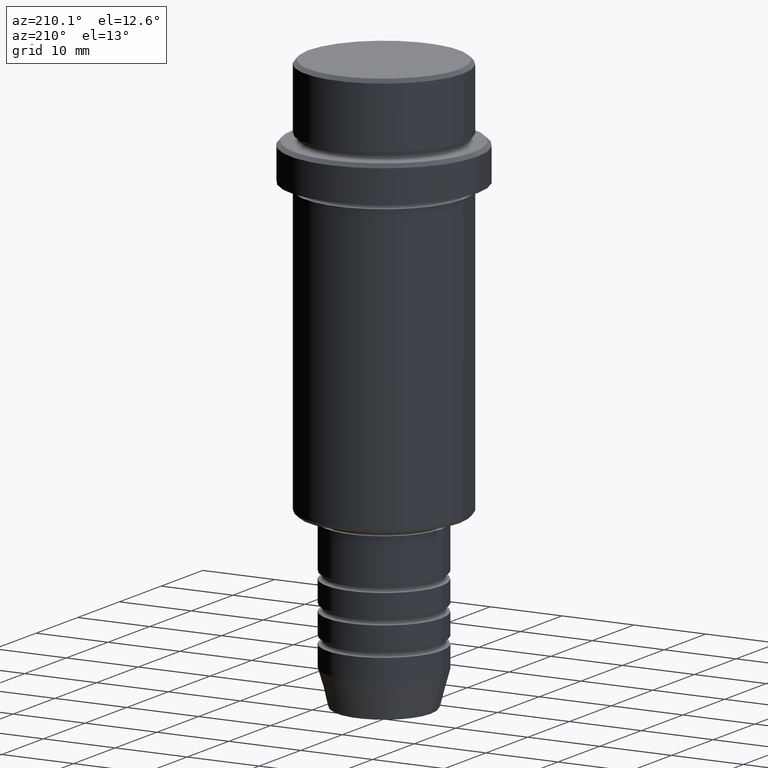
[diagram: clean part render]
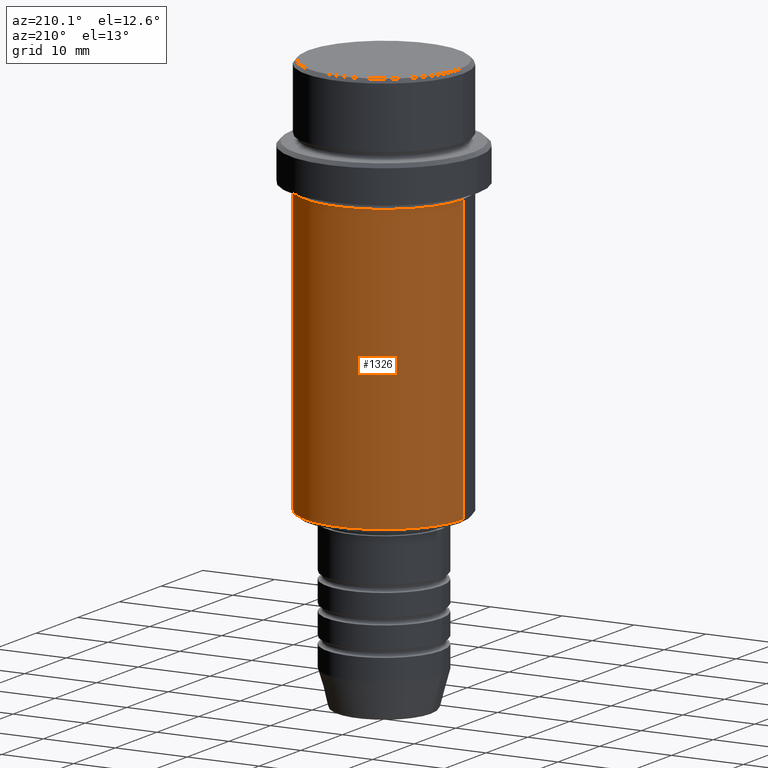
[diagram: same view with one face highlighted and labeled with its STEP entity id]
A machine part, auxiliary view. The second image highlights one B-rep face of the part: STEP entity #1326.
In plain terms, the highlighted cylindrical surface (partial cylindrical patch) has radius 11 mm, axis along (-0, -0, 1).
Its self-contained STEP definition (entity closure, byte-faithful):
#2 = AXIS2_PLACEMENT_3D ( 'NONE', #1288, #1283, #1379 ) ;
#20 = CARTESIAN_POINT ( 'NONE',  ( 10.99999999999998757, 0.000000000000000000, 0.000000000000000000 ) ) ;
#34 = EDGE_CURVE ( 'NONE', #200, #52, #514, .T. ) ;
#52 = VERTEX_POINT ( 'NONE', #309 ) ;
#78 = VERTEX_POINT ( 'NONE', #172 ) ;
#93 = ORIENTED_EDGE ( 'NONE', *, *, #291, .T. ) ;
#98 = CARTESIAN_POINT ( 'NONE',  ( -10.99999999999998757, 1.347111479062086827E-15, -55.50000000000000711 ) ) ;
#150 = EDGE_CURVE ( 'NONE', #78, #200, #1017, .T. ) ;
#169 = LINE ( 'NONE', #485, #653 ) ;
#172 = CARTESIAN_POINT ( 'NONE',  ( 10.99999999999998757, 0.000000000000000000, -55.50000000000000711 ) ) ;
#200 = VERTEX_POINT ( 'NONE', #869 ) ;
#217 = EDGE_LOOP ( 'NONE', ( #93, #434, #718, #1364 ) ) ;
#291 = EDGE_CURVE ( 'NONE', #78, #540, #1276, .T. ) ;
#309 = CARTESIAN_POINT ( 'NONE',  ( -10.99999999999997158, 1.347111479062085841E-15, -16.00000000000000355 ) ) ;
#311 = CARTESIAN_POINT ( 'NONE',  ( 0.000000000000000000, 0.000000000000000000, 0.000000000000000000 ) ) ;
#312 = EDGE_CURVE ( 'NONE', #540, #52, #169, .T. ) ;
#403 = AXIS2_PLACEMENT_3D ( 'NONE', #311, #1193, #1184 ) ;
#434 = ORIENTED_EDGE ( 'NONE', *, *, #312, .T. ) ;
#485 = CARTESIAN_POINT ( 'NONE',  ( -10.99999999999998757, 1.347111479062086827E-15, 0.000000000000000000 ) ) ;
#514 = CIRCLE ( 'NONE', #2, 10.99999999999997158 ) ;
#540 = VERTEX_POINT ( 'NONE', #98 ) ;
#653 = VECTOR ( 'NONE', #1279, 1000.000000000000000 ) ;
#718 = ORIENTED_EDGE ( 'NONE', *, *, #34, .F. ) ;
#814 = CARTESIAN_POINT ( 'NONE',  ( 0.000000000000000000, 0.000000000000000000, -55.50000000000000711 ) ) ;
#869 = CARTESIAN_POINT ( 'NONE',  ( 10.99999999999997158, 0.000000000000000000, -16.00000000000000355 ) ) ;
#883 = FACE_OUTER_BOUND ( 'NONE', #217, .T. ) ;
#1008 = DIRECTION ( 'NONE',  ( -1.000000000000000000, 0.000000000000000000, 0.000000000000000000 ) ) ;
#1017 = LINE ( 'NONE', #20, #1338 ) ;
#1184 = DIRECTION ( 'NONE',  ( 1.000000000000000000, 0.000000000000000000, 0.000000000000000000 ) ) ;
#1193 = DIRECTION ( 'NONE',  ( -0.000000000000000000, -0.000000000000000000, 1.000000000000000000 ) ) ;
#1276 = CIRCLE ( 'NONE', #1318, 10.99999999999998757 ) ;
#1279 = DIRECTION ( 'NONE',  ( -0.000000000000000000, -0.000000000000000000, 1.000000000000000000 ) ) ;
#1283 = DIRECTION ( 'NONE',  ( -0.000000000000000000, -0.000000000000000000, 1.000000000000000000 ) ) ;
#1288 = CARTESIAN_POINT ( 'NONE',  ( 0.000000000000000000, 0.000000000000000000, -16.00000000000000355 ) ) ;
#1304 = CYLINDRICAL_SURFACE ( 'NONE', #403, 10.99999999999998757 ) ;
#1308 = DIRECTION ( 'NONE',  ( -0.000000000000000000, -0.000000000000000000, 1.000000000000000000 ) ) ;
#1318 = AXIS2_PLACEMENT_3D ( 'NONE', #814, #1324, #1008 ) ;
#1324 = DIRECTION ( 'NONE',  ( -0.000000000000000000, -0.000000000000000000, 1.000000000000000000 ) ) ;
#1326 = ADVANCED_FACE ( 'NONE', ( #883 ), #1304, .T. ) ;
#1338 = VECTOR ( 'NONE', #1308, 1000.000000000000000 ) ;
#1364 = ORIENTED_EDGE ( 'NONE', *, *, #150, .F. ) ;
#1379 = DIRECTION ( 'NONE',  ( 1.000000000000000000, 0.000000000000000000, 0.000000000000000000 ) ) ;